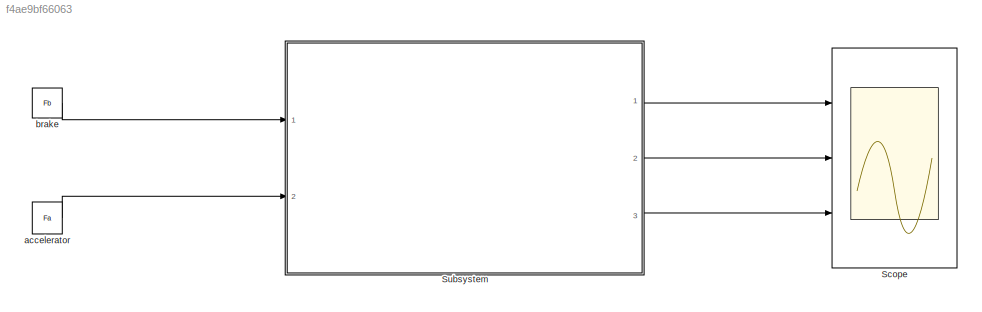
MODEL slx_f4ae9bf66063
KIND model
CONFIG AbsTol = auto
CONFIG FixedStep = 0.01
CONFIG MaxStep = auto
CONFIG MinStep = auto
CONFIG RelTol = 1e-3
CONFIG SampleTimeConstraint = Unconstrained
CONFIG Solver = FixedStepAuto
CONFIG SolverMode = Auto
CONFIG SolverName = FixedStepAuto
CONFIG StartTime = 0.0
CONFIG StopTime = 8
BLOCK [Scope] Scope
  NumInputPorts = 3
  Ports = [3]
  ScopeSpecificationString = Simulink.scopes.TimeScopeBlockCfg('CurrentConfiguration', extmgr.ConfigurationSet(extmgr.Configuration('Core','General UI',true),extmgr.Configuration('Core','Source UI',true),extmgr.Configuration('Sources','WiredSimulink',true),extmgr.Configuration('Visuals','Time Domain',true,'SerializedDisplays',{struct('MinYLimReal','-0.03405','MaxYLimReal','0.03237','YLabelReal','','MinYLimMag','0.00000','MaxY...<+1427ch>
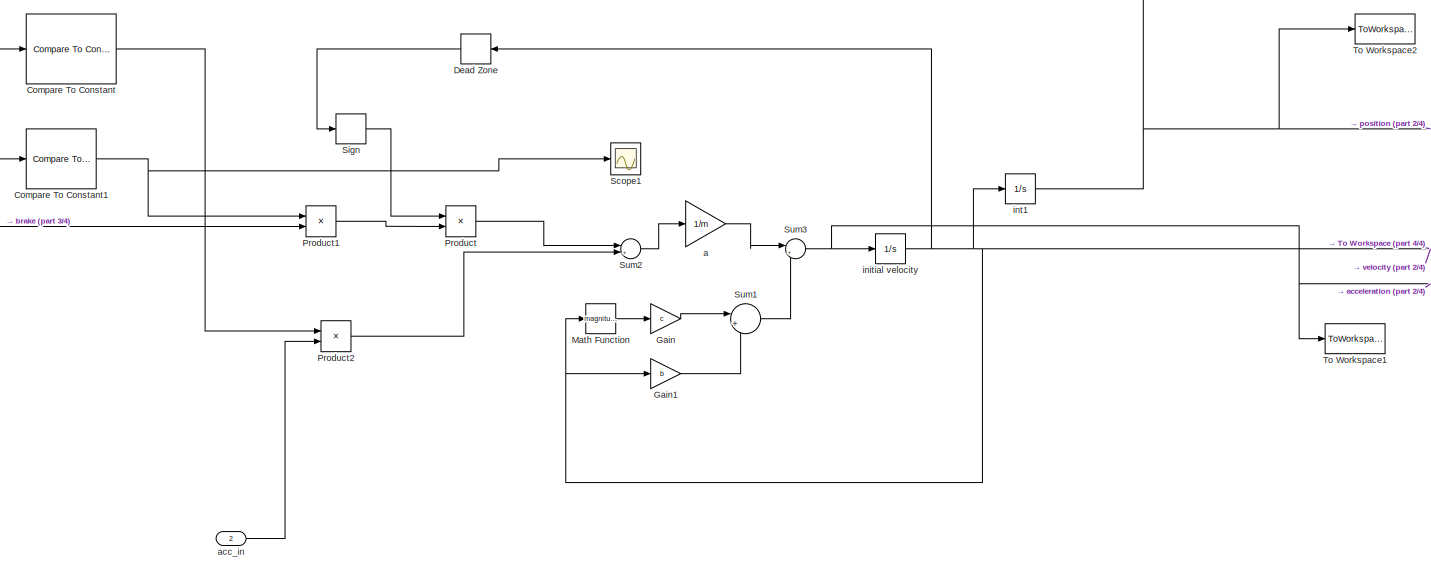
[diagram: Subsystem - part 1/4, most of the canvas]
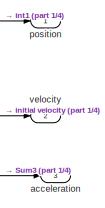
[diagram: Subsystem - part 2/4, middle right region]
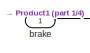
[diagram: Subsystem - part 3/4, middle left region]
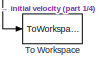
[diagram: Subsystem - part 4/4, middle right region]
BLOCK [SubSystem] Subsystem
  Ports = [2, 3]
  RequestExecContextInheritance = off
  Variant = off
BLOCK [Reference] Subsystem/Compare To Constant  REF=simulink/Logic and Bit
Operations/Compare
To Constant
  Ports = [1, 1]
  SourceBlock = simulink/Logic and Bit\nOperations/Compare\nTo Constant
  SourceType = Compare To Constant
BLOCK [Reference] Subsystem/Compare To Constant1  REF=simulink/Logic and Bit
Operations/Compare
To Constant
  Ports = [1, 1]
  SourceBlock = simulink/Logic and Bit\nOperations/Compare\nTo Constant
  SourceType = Compare To Constant
BLOCK [DeadZone] Subsystem/Dead Zone
  LowerValue = -0.03
  UpperValue = 0.03
BLOCK [Gain] Subsystem/Gain
  Gain = c
  OutDataTypeStr = Inherit: Inherit via internal rule
  ParamDataTypeStr = Inherit: Inherit via internal rule
  SaturateOnIntegerOverflow = off
BLOCK [Gain] Subsystem/Gain1
  Gain = b
  OutDataTypeStr = Inherit: Inherit via internal rule
  ParamDataTypeStr = Inherit: Inherit via internal rule
  SaturateOnIntegerOverflow = off
BLOCK [Math] Subsystem/Math Function
  Operator = magnitude^2
  Ports = [1, 1]
BLOCK [Product] Subsystem/Product
  InputSameDT = off
  OutDataTypeStr = Inherit: Inherit via internal rule
  Ports = [2, 1]
  RndMeth = Floor
  SaturateOnIntegerOverflow = off
BLOCK [Product] Subsystem/Product1
  InputSameDT = off
  OutDataTypeStr = Inherit: Inherit via internal rule
  Ports = [2, 1]
  RndMeth = Floor
  SaturateOnIntegerOverflow = off
BLOCK [Product] Subsystem/Product2
  InputSameDT = off
  OutDataTypeStr = Inherit: Inherit via internal rule
  Ports = [2, 1]
  RndMeth = Floor
  SaturateOnIntegerOverflow = off
BLOCK [Scope] Subsystem/Scope1
  Ports = [1]
  ScopeSpecificationString = Simulink.scopes.TimeScopeBlockCfg('CurrentConfiguration', extmgr.ConfigurationSet(extmgr.Configuration('Core','General UI',true),extmgr.Configuration('Core','Source UI',true),extmgr.Configuration('Sources','WiredSimulink',true,'DataLoggingVariableName','ScopeData1'),extmgr.Configuration('Visuals','Time Domain',true,'SerializedDisplays',{struct('MinYLimReal','-0.125','MaxYLimReal','0.125','YLabelRe...<+1440ch>
BLOCK [Signum] Subsystem/Sign
BLOCK [Sum] Subsystem/Sum1
  IconShape = round
  InputSameDT = off
  Inputs = |++
  OutDataTypeStr = Inherit: Inherit via internal rule
  Ports = [2, 1]
  SaturateOnIntegerOverflow = off
BLOCK [Sum] Subsystem/Sum2
  IconShape = round
  InputSameDT = off
  Inputs = |++
  OutDataTypeStr = Inherit: Inherit via internal rule
  Ports = [2, 1]
  SaturateOnIntegerOverflow = off
BLOCK [Sum] Subsystem/Sum3
  IconShape = round
  InputSameDT = off
  Inputs = |+-
  OutDataTypeStr = Inherit: Inherit via internal rule
  Ports = [2, 1]
  SaturateOnIntegerOverflow = off
BLOCK [ToWorkspace] Subsystem/To Workspace
  FixptAsFi = on
  MaxDataPoints = inf
  Ports = [1]
  SampleTime = -1
  Save2DSignal = 3-D array (concatenate along third dimension)
  SaveFormat = Timeseries
  VariableName = vout
BLOCK [ToWorkspace] Subsystem/To Workspace1
  FixptAsFi = on
  MaxDataPoints = inf
  Ports = [1]
  SampleTime = -1
  Save2DSignal = 3-D array (concatenate along third dimension)
  SaveFormat = Timeseries
  VariableName = aout
BLOCK [ToWorkspace] Subsystem/To Workspace2
  FixptAsFi = on
  MaxDataPoints = inf
  Ports = [1]
  SampleTime = -1
  Save2DSignal = 3-D array (concatenate along third dimension)
  SaveFormat = Timeseries
  VariableName = xout
BLOCK [Gain] Subsystem/a
  Gain = 1/m
  OutDataTypeStr = Inherit: Inherit via internal rule
  ParamDataTypeStr = Inherit: Inherit via internal rule
  SaturateOnIntegerOverflow = off
BLOCK [Inport] Subsystem/acc_in
  IconDisplay = Port number
  Port = 2
BLOCK [Outport] Subsystem/acceleration
  IconDisplay = Port number
  Port = 3
BLOCK [Inport] Subsystem/brake
  IconDisplay = Port number
BLOCK [Integrator] Subsystem/initial velocity
  InitialCondition = Vini
  Ports = [1, 1]
BLOCK [Integrator] Subsystem/int1
  Ports = [1, 1]
BLOCK [Outport] Subsystem/position 
  IconDisplay = Port number
BLOCK [Outport] Subsystem/velocity
  IconDisplay = Port number
  Port = 2
BLOCK [Constant] accelerator
  Value = Fa
BLOCK [Constant] brake
  Value = Fb
NET Subsystem/Compare To Constant1:1 -> Subsystem/Product1:1, Subsystem/Scope1:1
LINE Subsystem/Compare To Constant:1 -> Subsystem/Product2:1
LINE Subsystem/Dead Zone:1 -> Subsystem/Sign:1
LINE Subsystem/Gain1:1 -> Subsystem/Sum1:2
LINE Subsystem/Gain:1 -> Subsystem/Sum1:1
LINE Subsystem/Math Function:1 -> Subsystem/Gain:1
LINE Subsystem/Product1:1 -> Subsystem/Product:2
LINE Subsystem/Product2:1 -> Subsystem/Sum2:2
LINE Subsystem/Product:1 -> Subsystem/Sum2:1
LINE Subsystem/Sign:1 -> Subsystem/Product:1
LINE Subsystem/Sum1:1 -> Subsystem/Sum3:2
LINE Subsystem/Sum2:1 -> Subsystem/a:1
NET Subsystem/Sum3:1 -> Subsystem/To Workspace1:1, Subsystem/acceleration:1, Subsystem/initial velocity:1
LINE Subsystem/a:1 -> Subsystem/Sum3:1
LINE Subsystem/acc_in:1 -> Subsystem/Product2:2
LINE Subsystem/brake:1 -> Subsystem/Product1:2
NET Subsystem/initial velocity:1 -> Subsystem/Dead Zone:1, Subsystem/Gain1:1, Subsystem/Math Function:1, Subsystem/To Workspace:1, Subsystem/int1:1, Subsystem/velocity:1
NET Subsystem/int1:1 -> Subsystem/Compare To Constant1:1, Subsystem/Compare To Constant:1, Subsystem/To Workspace2:1, Subsystem/position :1
LINE Subsystem:1 -> Scope:1
LINE Subsystem:2 -> Scope:2
LINE Subsystem:3 -> Scope:3
LINE accelerator:1 -> Subsystem:2
LINE brake:1 -> Subsystem:1
note: NET lines group one-source signal fan-out (src -> all destinations, sorted); 1:1 wires keep LINE
